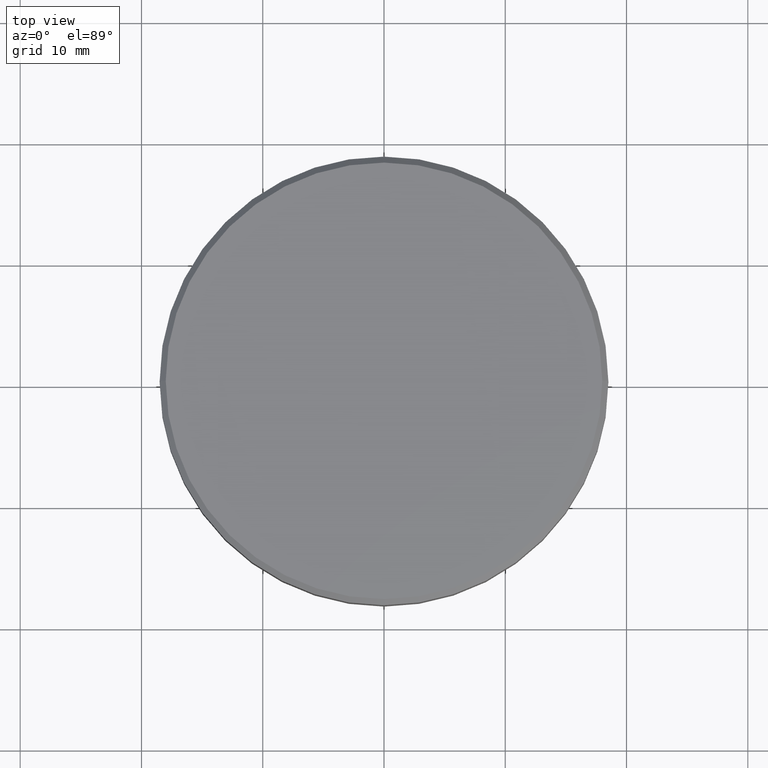
[diagram: clean part render]
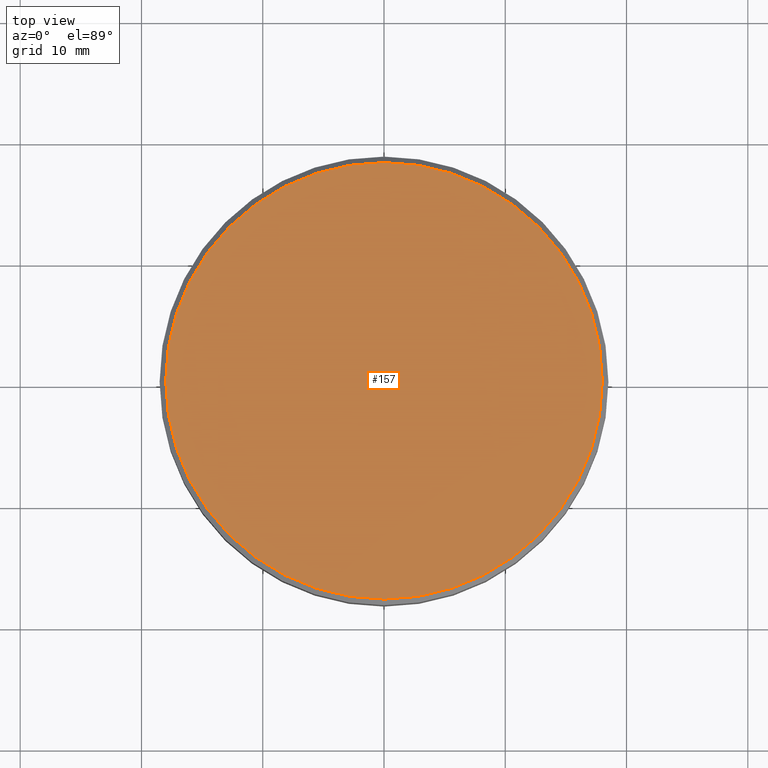
[diagram: same view with one face highlighted and labeled with its STEP entity id]
A machine part, top view. The second image highlights one B-rep face of the part: STEP entity #157.
In plain terms, the highlighted planar face has unit normal (0, -0, 1).
Its self-contained STEP definition (entity closure, byte-faithful):
#18 = DIRECTION ( 'NONE',  ( -0.000000000000000000, -0.000000000000000000, 1.000000000000000000 ) ) ;
#22 = CIRCLE ( 'NONE', #390, 18.00000000000001066 ) ;
#26 = DIRECTION ( 'NONE',  ( 1.000000000000000000, 0.000000000000000000, 0.000000000000000000 ) ) ;
#35 = CARTESIAN_POINT ( 'NONE',  ( 18.00000000000001066, 2.234980408443920004E-15, 0.000000000000000000 ) ) ;
#58 = CARTESIAN_POINT ( 'NONE',  ( 0.000000000000000000, 0.000000000000000000, 0.000000000000000000 ) ) ;
#108 = CARTESIAN_POINT ( 'NONE',  ( 0.000000000000000000, 0.000000000000000000, 0.000000000000000000 ) ) ;
#113 = ORIENTED_EDGE ( 'NONE', *, *, #380, .T. ) ;
#120 = VERTEX_POINT ( 'NONE', #35 ) ;
#137 = CIRCLE ( 'NONE', #302, 18.00000000000001066 ) ;
#157 = ADVANCED_FACE ( 'NONE', ( #371 ), #160, .T. ) ;
#160 = PLANE ( 'NONE',  #308 ) ;
#177 = VERTEX_POINT ( 'NONE', #387 ) ;
#224 = DIRECTION ( 'NONE',  ( -0.000000000000000000, -0.000000000000000000, 1.000000000000000000 ) ) ;
#246 = DIRECTION ( 'NONE',  ( 1.000000000000000000, 0.000000000000000000, 0.000000000000000000 ) ) ;
#261 = EDGE_LOOP ( 'NONE', ( #295, #113 ) ) ;
#286 = DIRECTION ( 'NONE',  ( 1.000000000000000000, 0.000000000000000000, 0.000000000000000000 ) ) ;
#295 = ORIENTED_EDGE ( 'NONE', *, *, #354, .T. ) ;
#302 = AXIS2_PLACEMENT_3D ( 'NONE', #58, #18, #246 ) ;
#308 = AXIS2_PLACEMENT_3D ( 'NONE', #408, #403, #26 ) ;
#354 = EDGE_CURVE ( 'NONE', #177, #120, #22, .T. ) ;
#371 = FACE_OUTER_BOUND ( 'NONE', #261, .T. ) ;
#380 = EDGE_CURVE ( 'NONE', #120, #177, #137, .T. ) ;
#387 = CARTESIAN_POINT ( 'NONE',  ( -18.00000000000001066, 0.000000000000000000, 0.000000000000000000 ) ) ;
#390 = AXIS2_PLACEMENT_3D ( 'NONE', #108, #224, #286 ) ;
#403 = DIRECTION ( 'NONE',  ( 0.000000000000000000, -0.000000000000000000, 1.000000000000000000 ) ) ;
#408 = CARTESIAN_POINT ( 'NONE',  ( 0.000000000000000000, 0.000000000000000000, 0.000000000000000000 ) ) ;